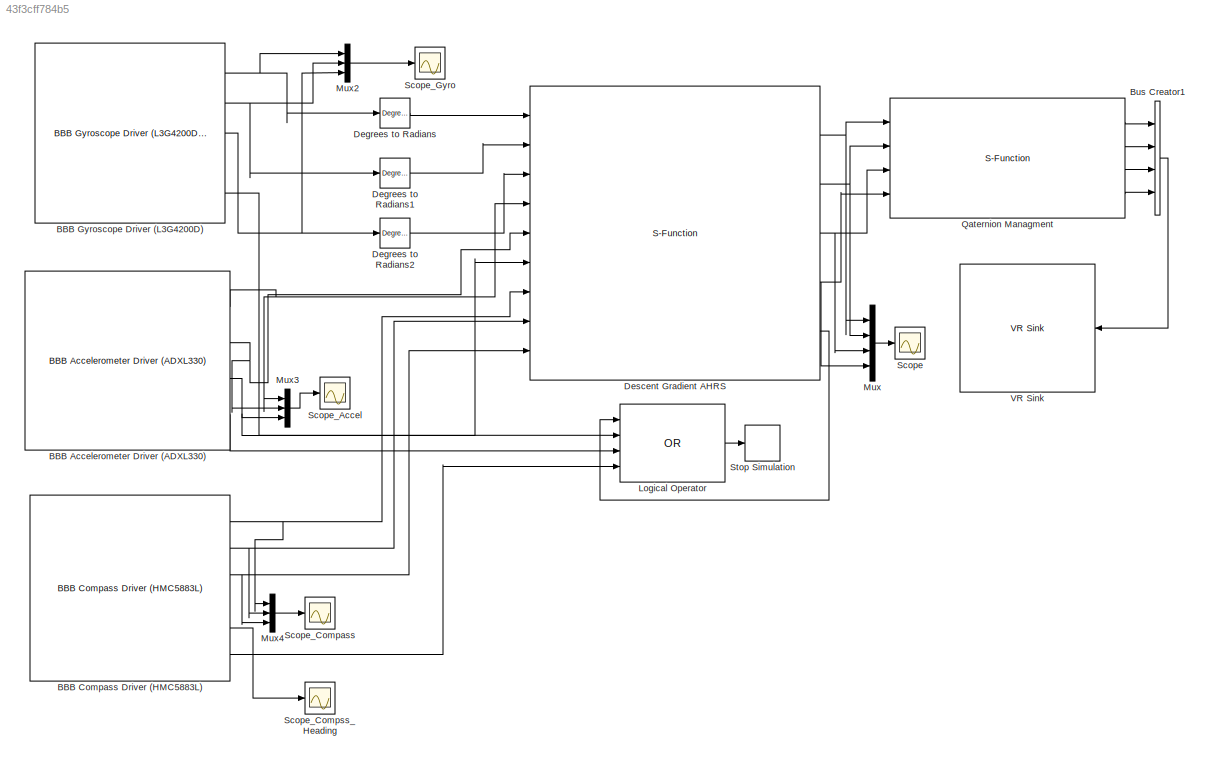
MODEL slx_43f3cff784b5
KIND model
BLOCK [Reference] BBB Accelerometer Driver (ADXL330)  REF=BLACKlink/BBB Accelerometer Driver (ADXL330)
  BBB_AccelSensitivity = Sensitivity: 333 mV/g -> 3.3V Operating Voltage
  BBB_CalibrationReq = on
  BBB_DebugInfo = No Debug Info
  Ports = [0, 4]
  SourceBlock = BLACKlink/BBB Accelerometer Driver (ADXL330)
  SourceType = BLACKlink Album - BBB_Driver_Accelerometer_ADXL330
BLOCK [Reference] BBB Compass Driver (HMC5883L)  REF=BLACKlink/BBB Compass Driver (HMC5883L)
  BBB_Compass_DataOutAvrg = 1 Sample per Measurement Output
  BBB_Compass_DataOutRate = 75 Hz
  BBB_Compass_DeclinationAng = -14.66
  BBB_Compass_GainValue = GN3 - Sensor Field Range: +/- 2.50 Ga; Gain: 660 LSb/Gauss
  BBB_Compass_HeadingMode = Output True North
  BBB_Compass_HeadingOffset = 0.0
  BBB_Compass_MeasureMode = Normal Configuration
  BBB_Compass_OpMode = Continuous Measurement Mode
  BBB_Compass_SelfTest = on
  BBB_Compass_SelfTest_GainValue = GN0 - Sensor Field Range: +/- 0.88 Ga; Gain: 1370 LSb/Gauss
  BBB_Debug_InfoLevel = No Debug Info
  BBB_I2CAddress = Compass Address: 0x1E
  BBB_I2CBus = BeagleBone Black I2C Channel 1
  Ports = [0, 6]
  SourceBlock = BLACKlink/BBB Compass Driver (HMC5883L)
  SourceType = BLACKlink Album - BBB_Driver_Compass_HMC5883L
BLOCK [Reference] BBB Gyroscope Driver (L3G4200D)   REF=BLACKlink/BBB Gyroscope Driver (L3G4200D)

  BBB_DebugInfo = No Debug Info
  BBB_GyroRange = Range: 250 deg/sec
  BBB_I2CAddress = Gyro Address: 0x068
  BBB_I2CBus = BeagleBone Black I2C Channel 1
  Ports = [0, 5]
  SourceBlock = BLACKlink/BBB Gyroscope Driver (L3G4200D)
  SourceType = BLACKlink Album - BBB_Driver_Gyroscope_L3G4200D
BLOCK [BusCreator] Bus Creator1
  DisplayOption = bar
  Ports = [4, 1]
BLOCK [Reference] Degrees to Radians  REF=simulink_extras/Transformations/Degrees to
Radians
  Ports = [1, 1]
  SourceBlock = simulink_extras/Transformations/Degrees to\nRadians
  SourceType = DegreesToRadians
BLOCK [Reference] Degrees to Radians1  REF=simulink_extras/Transformations/Degrees to
Radians
  Ports = [1, 1]
  SourceBlock = simulink_extras/Transformations/Degrees to\nRadians
  SourceType = DegreesToRadians
BLOCK [Reference] Degrees to Radians2  REF=simulink_extras/Transformations/Degrees to
Radians
  Ports = [1, 1]
  SourceBlock = simulink_extras/Transformations/Degrees to\nRadians
  SourceType = DegreesToRadians
BLOCK [S-Function] Descent Gradient AHRS
  CopyFcn = set_param(gcbh,'LinkStatus','none')
  EnableBusSupport = off
  FunctionName = BBB_AHRS_IMU_MARG_v1
  InitFcn = try, set_param(gcb,'FunctionName','BBB_AHRS_IMU_MARG_v1'), end
  OpenFcn = sfunctionwizard(gcbh)
  Ports = [9, 5]
  PreSaveFcn = try, set_param(gcb,'FunctionName','BBB_AHRS_IMU_MARG_v1'), end
  SFunctionModules = BBB_AHRS_IMU_MARG_v1_wrapper
BLOCK [Logic] Logical Operator
  AllPortsSameDT = off
  Inputs = 4
  Operator = OR
  OutDataTypeStr = boolean
  Ports = [4, 1]
BLOCK [Mux] Mux
  DisplayOption = bar
  Ports = [4, 1]
BLOCK [Mux] Mux2
  DisplayOption = bar
  Inputs = 3
  Ports = [3, 1]
BLOCK [Mux] Mux3
  DisplayOption = bar
  Inputs = 3
  Ports = [3, 1]
BLOCK [Mux] Mux4
  DisplayOption = bar
  Inputs = 3
  Ports = [3, 1]
BLOCK [S-Function] Qaternion Managment
  CopyFcn = set_param(gcbh,'LinkStatus','none')
  EnableBusSupport = off
  FunctionName = BBB_Quaternion_SFRotation
  InitFcn = try, set_param(gcb,'FunctionName','BBB_Quaternion_SFRotation'), end
  OpenFcn = sfunctionwizard(gcbh)
  Ports = [4, 4]
  PreSaveFcn = try, set_param(gcb,'FunctionName','BBB_Quaternion_SFRotation'), end
  SFunctionModules = BBB_Quaternion_SFRotation_wrapper
BLOCK [Scope] Scope
  DataFormat = StructureWithTime
  Floating = off
  NumInputPorts = 1
  Ports = [1]
  SampleTime = 0
  ShowLegends = off
  YMax = 1
  YMin = -0.4
BLOCK [Scope] Scope_Accel
  DataFormat = StructureWithTime
  Floating = off
  NumInputPorts = 1
  Ports = [1]
  SampleTime = 0
  SaveName = ScopeData3
  ShowLegends = off
BLOCK [Scope] Scope_Compass
  DataFormat = StructureWithTime
  Floating = off
  NumInputPorts = 1
  Ports = [1]
  SampleTime = 0
  SaveName = ScopeData4
  ShowLegends = off
  YMax = 20
  YMin = -30
BLOCK [Scope] Scope_Compss_Heading
  DataFormat = StructureWithTime
  Floating = off
  NumInputPorts = 1
  Ports = [1]
  SampleTime = 0
  SaveName = ScopeData1
  ShowLegends = off
  YMax = 375
  YMin = 0
BLOCK [Scope] Scope_Gyro
  DataFormat = StructureWithTime
  Floating = off
  NumInputPorts = 1
  Ports = [1]
  SampleTime = 0
  SaveName = ScopeData2
  ShowLegends = off
  YMax = 275
  YMin = -300
BLOCK [Stop] Stop Simulation
BLOCK [Reference] VR Sink  REF=vrlib/VR Sink
  AllowVariableSize = off
  AutoView = off
  FieldsWritten = BBB_Aircraft.rotation.4.1.1.double
  InstantiateOnLoad = on
  Ports = [1]
  RemoteChange = off
  RemoteView = off
  SampleTime = -1
  SourceBlock = vrlib/VR Sink
  SourceType = Virtual Reality Sink
  VideoDimensions = []
  ViewEnable = on
  WorldFileName = Software_Quadrotor_VRML\BBB_Plane.WRL
NET BBB Accelerometer Driver (ADXL330):1 -> Descent Gradient AHRS:4, Mux3:1
NET BBB Accelerometer Driver (ADXL330):2 -> Descent Gradient AHRS:5, Mux3:2
NET BBB Accelerometer Driver (ADXL330):3 -> Descent Gradient AHRS:6, Mux3:3
LINE BBB Accelerometer Driver (ADXL330):4 -> Logical Operator:3
NET BBB Compass Driver (HMC5883L):1 -> Descent Gradient AHRS:7, Mux4:1
NET BBB Compass Driver (HMC5883L):2 -> Descent Gradient AHRS:8, Mux4:2
NET BBB Compass Driver (HMC5883L):3 -> Descent Gradient AHRS:9, Mux4:3
LINE BBB Compass Driver (HMC5883L):5 -> Scope_Compss_Heading:1
LINE BBB Compass Driver (HMC5883L):6 -> Logical Operator:4
NET BBB Gyroscope Driver (L3G4200D) :1 -> Degrees to Radians:1, Mux2:1
NET BBB Gyroscope Driver (L3G4200D) :2 -> Degrees to Radians1:1, Mux2:2
NET BBB Gyroscope Driver (L3G4200D) :3 -> Degrees to Radians2:1, Mux2:3
LINE BBB Gyroscope Driver (L3G4200D) :5 -> Logical Operator:2
LINE Bus Creator1:1 -> VR Sink:1
LINE Degrees to Radians1:1 -> Descent Gradient AHRS:2
LINE Degrees to Radians2:1 -> Descent Gradient AHRS:3
LINE Degrees to Radians:1 -> Descent Gradient AHRS:1
NET Descent Gradient AHRS:1 -> Mux:1, Qaternion Managment:1
NET Descent Gradient AHRS:2 -> Mux:2, Qaternion Managment:2
NET Descent Gradient AHRS:3 -> Mux:3, Qaternion Managment:3
NET Descent Gradient AHRS:4 -> Mux:4, Qaternion Managment:4
LINE Descent Gradient AHRS:5 -> Logical Operator:1
LINE Logical Operator:1 -> Stop Simulation:1
LINE Mux2:1 -> Scope_Gyro:1
LINE Mux3:1 -> Scope_Accel:1
LINE Mux4:1 -> Scope_Compass:1
LINE Mux:1 -> Scope:1
LINE Qaternion Managment:1 -> Bus Creator1:1
LINE Qaternion Managment:2 -> Bus Creator1:2
LINE Qaternion Managment:3 -> Bus Creator1:3
LINE Qaternion Managment:4 -> Bus Creator1:4
note: NET lines group one-source signal fan-out (src -> all destinations, sorted); 1:1 wires keep LINE
